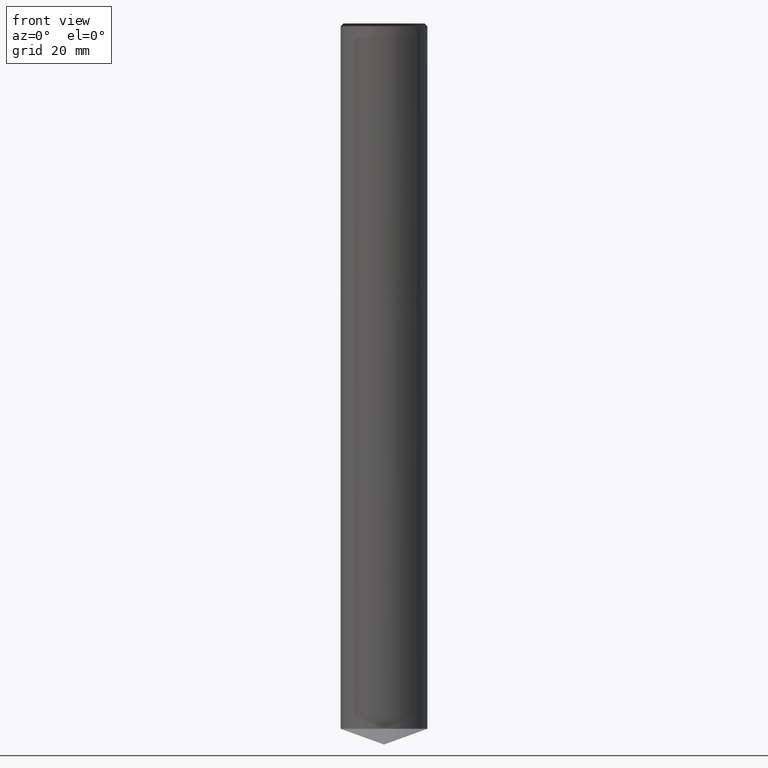
[diagram: clean part render]
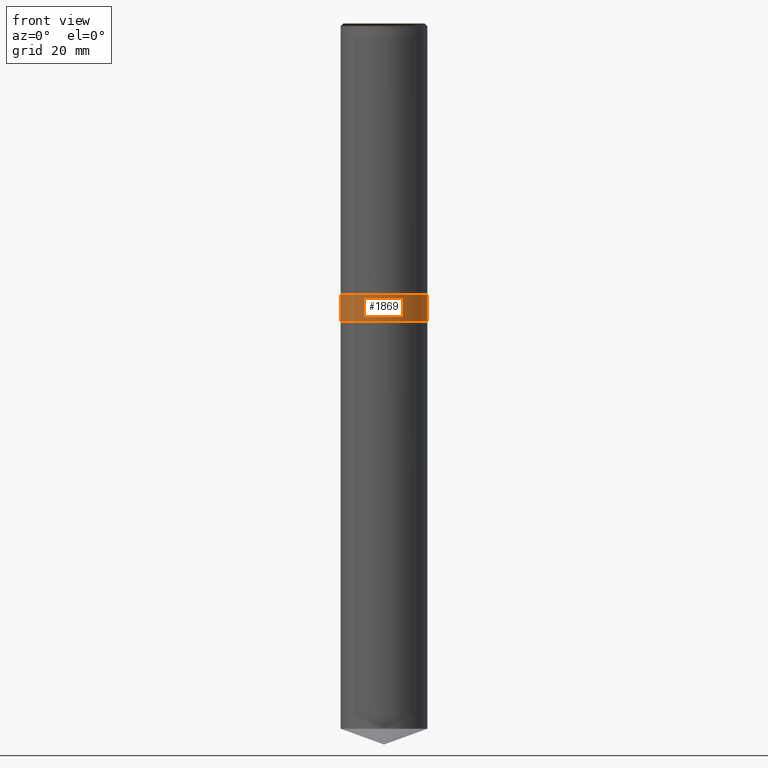
[diagram: same view with one face highlighted and labeled with its STEP entity id]
A machine part, front view. The second image highlights one B-rep face of the part: STEP entity #1869.
In plain terms, the highlighted face is a freeform B-spline surface patch.
Its self-contained STEP definition (entity closure, byte-faithful):
#1564=CARTESIAN_POINT('',(8.0,0.0,-7.0));
#1568=CARTESIAN_POINT('',(-8.0,0.0,-7.0));
#1573=CARTESIAN_POINT('',(-8.0,-8.0,-7.0));
#1574=CARTESIAN_POINT('',(0.0,-8.0,-7.0));
#1575=CARTESIAN_POINT('',(8.0,-8.0,-7.0));
#1576=CARTESIAN_POINT('',(8.0,0.0,-2.0));
#1580=CARTESIAN_POINT('',(-8.0,0.0,-2.0));
#1597=CARTESIAN_POINT('',(-8.0,-8.0,-2.0));
#1598=CARTESIAN_POINT('',(0.0,-8.0,-2.0));
#1599=CARTESIAN_POINT('',(8.0,-8.0,-2.0));
#1850=(
BOUNDED_SURFACE()
B_SPLINE_SURFACE(1,2,(
(#1568,#1573,#1574,#1575,#1564),
(#1580,#1597,#1598,#1599,#1576)
), .UNSPECIFIED.,.F.,.F.,.F.)
B_SPLINE_SURFACE_WITH_KNOTS((2,2),(3,2,3),(
0.0,1.0),(
0.0,0.5,1.0), .UNSPECIFIED.)
GEOMETRIC_REPRESENTATION_ITEM()
RATIONAL_B_SPLINE_SURFACE(((1.0,0.707106781187,1.0,0.707106781187,1.0),
(1.0,0.707106781187,1.0,0.707106781187,1.0)
))
REPRESENTATION_ITEM('')
SURFACE()
);
#1851=(
BOUNDED_CURVE()
B_SPLINE_CURVE(2,(#1564,#1575,#1574,#1573,#1568),.UNSPECIFIED.,.F.,.F.)
B_SPLINE_CURVE_WITH_KNOTS((3,2,3),
(0.0,0.5,1.0),.UNSPECIFIED.)
CURVE()
GEOMETRIC_REPRESENTATION_ITEM()
RATIONAL_B_SPLINE_CURVE((1.0,0.707106781187,1.0,0.707106781187,1.0))
REPRESENTATION_ITEM('')
);
#1852=(
BOUNDED_CURVE()
B_SPLINE_CURVE(1,(#1568,#1580),.UNSPECIFIED.,.F.,.F.)
B_SPLINE_CURVE_WITH_KNOTS((2,2),
(0.0,1.0),.UNSPECIFIED.)
CURVE()
GEOMETRIC_REPRESENTATION_ITEM()
RATIONAL_B_SPLINE_CURVE((1.0,1.0))
REPRESENTATION_ITEM('')
);
#1853=(
BOUNDED_CURVE()
B_SPLINE_CURVE(2,(#1580,#1597,#1598,#1599,#1576),.UNSPECIFIED.,.F.,.F.)
B_SPLINE_CURVE_WITH_KNOTS((3,2,3),
(0.0,0.5,1.0),.UNSPECIFIED.)
CURVE()
GEOMETRIC_REPRESENTATION_ITEM()
RATIONAL_B_SPLINE_CURVE((1.0,0.707106781187,1.0,0.707106781187,1.0))
REPRESENTATION_ITEM('')
);
#1854=(
BOUNDED_CURVE()
B_SPLINE_CURVE(1,(#1576,#1564),.UNSPECIFIED.,.F.,.F.)
B_SPLINE_CURVE_WITH_KNOTS((2,2),
(0.0,1.0),.UNSPECIFIED.)
CURVE()
GEOMETRIC_REPRESENTATION_ITEM()
RATIONAL_B_SPLINE_CURVE((1.0,1.0))
REPRESENTATION_ITEM('')
);
#1855=VERTEX_POINT('',#1564);
#1856=VERTEX_POINT('',#1568);
#1857=VERTEX_POINT('',#1576);
#1858=VERTEX_POINT('',#1580);
#1859=EDGE_CURVE('',#1855,#1856,#1851,.T.);
#1860=EDGE_CURVE('',#1856,#1858,#1852,.T.);
#1861=EDGE_CURVE('',#1858,#1857,#1853,.T.);
#1862=EDGE_CURVE('',#1857,#1855,#1854,.T.);
#1863=ORIENTED_EDGE('',*,*,#1859,.T.);
#1864=ORIENTED_EDGE('',*,*,#1860,.T.);
#1865=ORIENTED_EDGE('',*,*,#1861,.T.);
#1866=ORIENTED_EDGE('',*,*,#1862,.T.);
#1867=EDGE_LOOP('',(#1863,#1864,#1865,#1866));
#1868=FACE_OUTER_BOUND('',#1867,.T.);
#1869=ADVANCED_FACE('',(#1868),#1850,.T.);